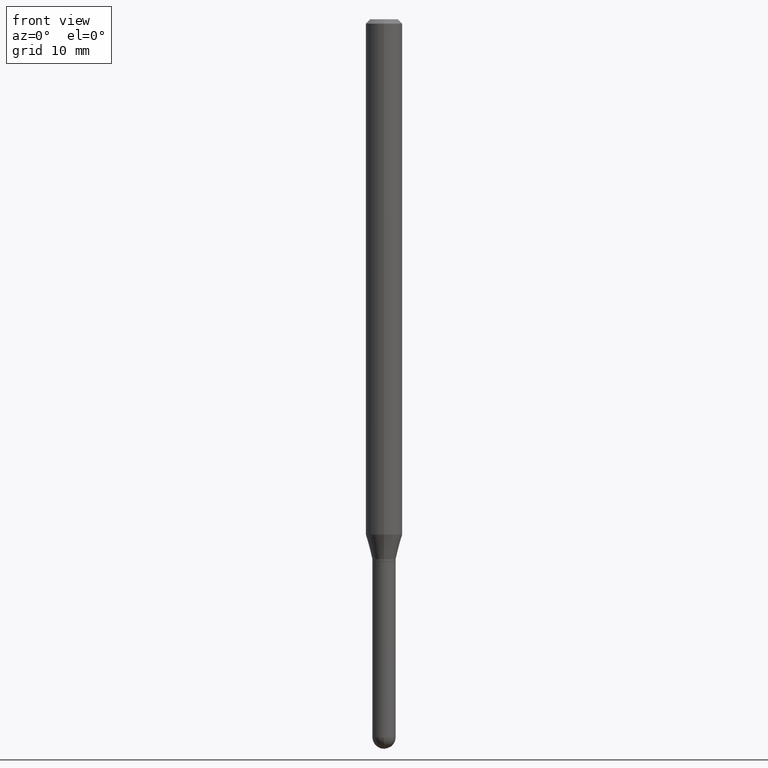
[diagram: clean part render]
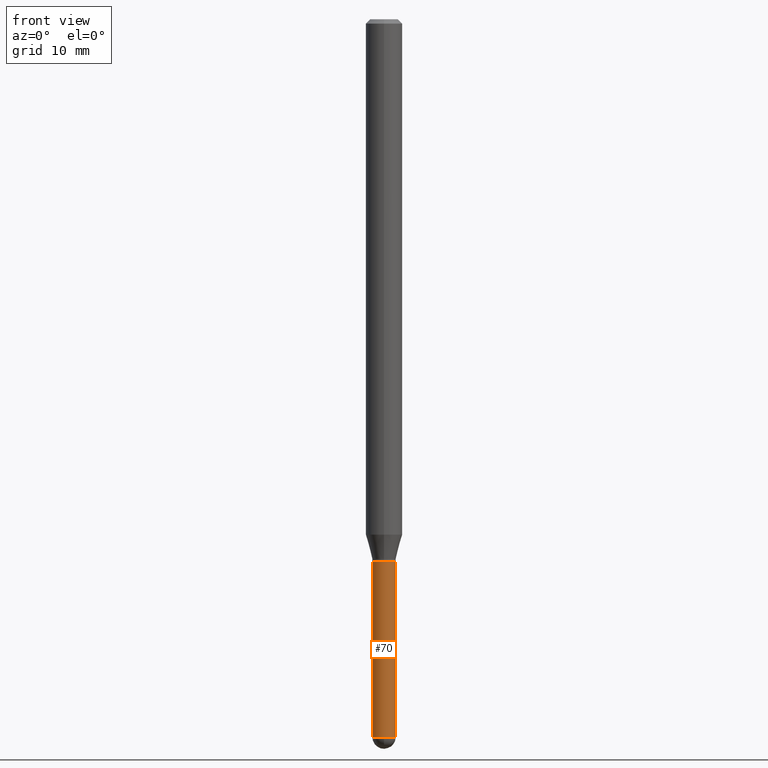
[diagram: same view with one face highlighted and labeled with its STEP entity id]
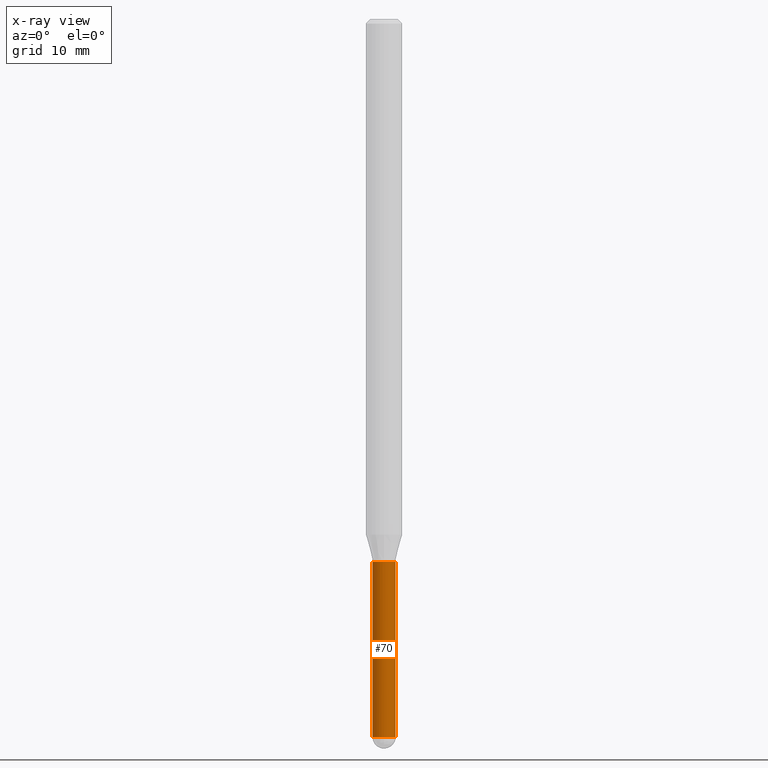
[diagram: x-ray of the same camera — body ghosted, the highlighted face saturated]
A machine part, front view. The second image highlights one B-rep face of the part: STEP entity #70.
The next image is the same camera in x-ray: the body ghosted, the highlighted face saturated — about 0% of this face is hidden behind the body in this view.
In plain terms, the highlighted cylindrical surface (edge-blend (fillet) strip) has radius 1.016 mm, axis along (-0, 0, 1).
Its self-contained STEP definition (entity closure, byte-faithful):
#11 = VERTEX_POINT ( 'NONE', #37 ) ;
#17 = VERTEX_POINT ( 'NONE', #255 ) ;
#21 = CARTESIAN_POINT ( 'NONE',  ( -2.842170943039801268E-16, -0.04000000000000862588, -2.459999999999999520 ) ) ;
#37 = CARTESIAN_POINT ( 'NONE',  ( 0.04000000000000000083, -6.773473797355701271E-15, -1.860000000000000098 ) ) ;
#45 = DIRECTION ( 'NONE',  ( -2.445468806185136597E-29, 3.491481338843145583E-15, 1.000000000000000000 ) ) ;
#47 = VECTOR ( 'NONE', #411, 39.37007874015748143 ) ;
#48 = VERTEX_POINT ( 'NONE', #126 ) ;
#49 = DIRECTION ( 'NONE',  ( -2.445468806185136597E-29, 3.491481338843145583E-15, 1.000000000000000000 ) ) ;
#67 = CIRCLE ( 'NONE', #345, 0.04000000000000000083 ) ;
#70 = ADVANCED_FACE ( 'NONE', ( #154 ), #239, .T. ) ;
#81 = EDGE_CURVE ( 'NONE', #122, #11, #467, .T. ) ;
#92 = EDGE_CURVE ( 'NONE', #17, #11, #106, .T. ) ;
#94 = AXIS2_PLACEMENT_3D ( 'NONE', #463, #415, #110 ) ;
#106 = CIRCLE ( 'NONE', #464, 0.04000000000000000083 ) ;
#110 = DIRECTION ( 'NONE',  ( 1.000000000000000000, -6.982962677686259611E-15, 0.000000000000000000 ) ) ;
#111 = VECTOR ( 'NONE', #232, 39.37007874015748143 ) ;
#122 = VERTEX_POINT ( 'NONE', #230 ) ;
#126 = CARTESIAN_POINT ( 'NONE',  ( -0.04000000000000000083, -7.257382597597153280E-15, -2.459999999999999964 ) ) ;
#128 = CIRCLE ( 'NONE', #94, 0.04000000000000000083 ) ;
#145 = DIRECTION ( 'NONE',  ( 1.000000000000000000, -6.982962677686259611E-15, 0.000000000000000000 ) ) ;
#154 = FACE_OUTER_BOUND ( 'NONE', #306, .T. ) ;
#164 = VERTEX_POINT ( 'NONE', #21 ) ;
#200 = ORIENTED_EDGE ( 'NONE', *, *, #389, .F. ) ;
#230 = CARTESIAN_POINT ( 'NONE',  ( 0.04000000000000000083, -7.820918199008643644E-15, -2.459999999999999964 ) ) ;
#232 = DIRECTION ( 'NONE',  ( -2.445468806185136877E-29, 3.491481338843145188E-15, 1.000000000000000000 ) ) ;
#239 = CYLINDRICAL_SURFACE ( 'NONE', #383, 0.04000000000000000083 ) ;
#253 = EDGE_CURVE ( 'NONE', #48, #164, #128, .T. ) ;
#255 = CARTESIAN_POINT ( 'NONE',  ( -0.04000000000000000083, -7.257382597597153280E-15, -1.860000000000000098 ) ) ;
#269 = DIRECTION ( 'NONE',  ( 1.000000000000000000, -6.982962677686265922E-15, 4.876176775795935793E-29 ) ) ;
#291 = ORIENTED_EDGE ( 'NONE', *, *, #81, .T. ) ;
#301 = CARTESIAN_POINT ( 'NONE',  ( 0.04000000000000000083, -2.793185071074506290E-16, 1.950470710318374387E-30 ) ) ;
#306 = EDGE_LOOP ( 'NONE', ( #200, #347, #321, #291, #330 ) ) ;
#310 = DIRECTION ( 'NONE',  ( -2.445468806185136597E-29, 3.491481338843145583E-15, 1.000000000000000000 ) ) ;
#321 = ORIENTED_EDGE ( 'NONE', *, *, #483, .T. ) ;
#330 = ORIENTED_EDGE ( 'NONE', *, *, #92, .F. ) ;
#342 = CARTESIAN_POINT ( 'NONE',  ( -0.04000000000000000083, 2.842170943040400803E-16, -1.967574036101962509E-30 ) ) ;
#345 = AXIS2_PLACEMENT_3D ( 'NONE', #418, #45, #145 ) ;
#347 = ORIENTED_EDGE ( 'NONE', *, *, #253, .T. ) ;
#354 = CARTESIAN_POINT ( 'NONE',  ( 0.000000000000000000, 0.000000000000000000, 0.000000000000000000 ) ) ;
#356 = LINE ( 'NONE', #342, #47 ) ;
#383 = AXIS2_PLACEMENT_3D ( 'NONE', #354, #310, #269 ) ;
#389 = EDGE_CURVE ( 'NONE', #48, #17, #356, .T. ) ;
#390 = CARTESIAN_POINT ( 'NONE',  ( 4.548571979504354361E-29, -6.494155290248250444E-15, -1.860000000000000098 ) ) ;
#411 = DIRECTION ( 'NONE',  ( -2.445468806185136877E-29, 3.491481338843145188E-15, 1.000000000000000000 ) ) ;
#415 = DIRECTION ( 'NONE',  ( -2.445468806185136597E-29, 3.491481338843145583E-15, 1.000000000000000000 ) ) ;
#418 = CARTESIAN_POINT ( 'NONE',  ( 6.015853263215436432E-29, -8.589044093554138346E-15, -2.459999999999999964 ) ) ;
#463 = CARTESIAN_POINT ( 'NONE',  ( 6.015853263215436432E-29, -8.589044093554138346E-15, -2.459999999999999964 ) ) ;
#464 = AXIS2_PLACEMENT_3D ( 'NONE', #390, #49, #472 ) ;
#467 = LINE ( 'NONE', #301, #111 ) ;
#472 = DIRECTION ( 'NONE',  ( 1.000000000000000000, -6.982962677686259611E-15, 0.000000000000000000 ) ) ;
#483 = EDGE_CURVE ( 'NONE', #164, #122, #67, .T. ) ;